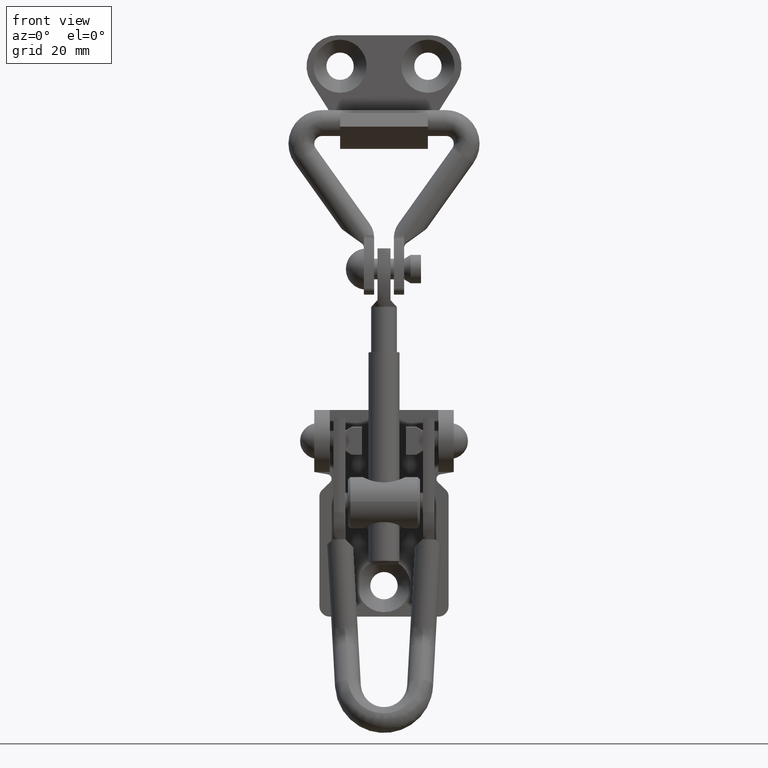
[diagram: clean part render]
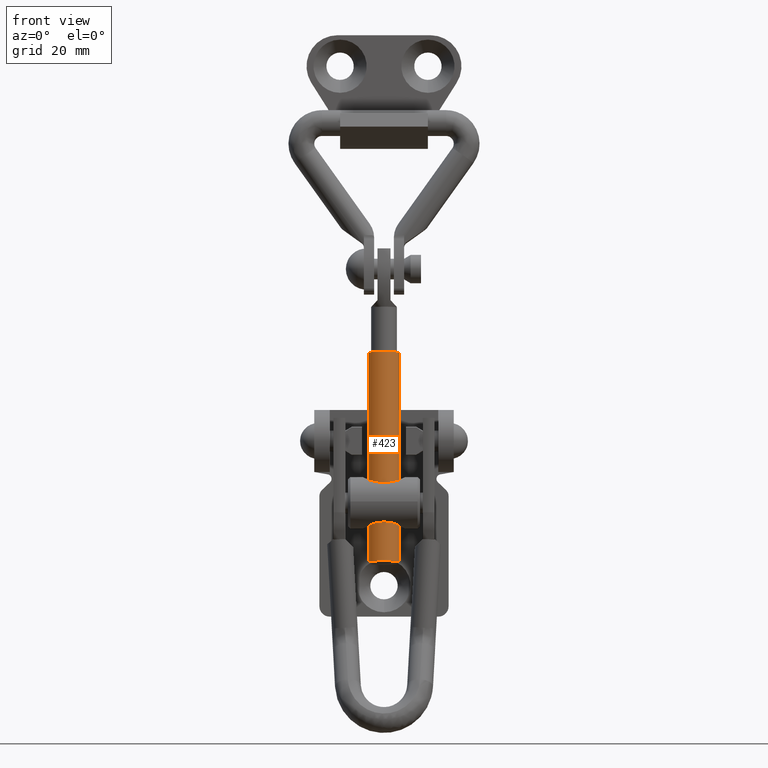
[diagram: same view with one face highlighted and labeled with its STEP entity id]
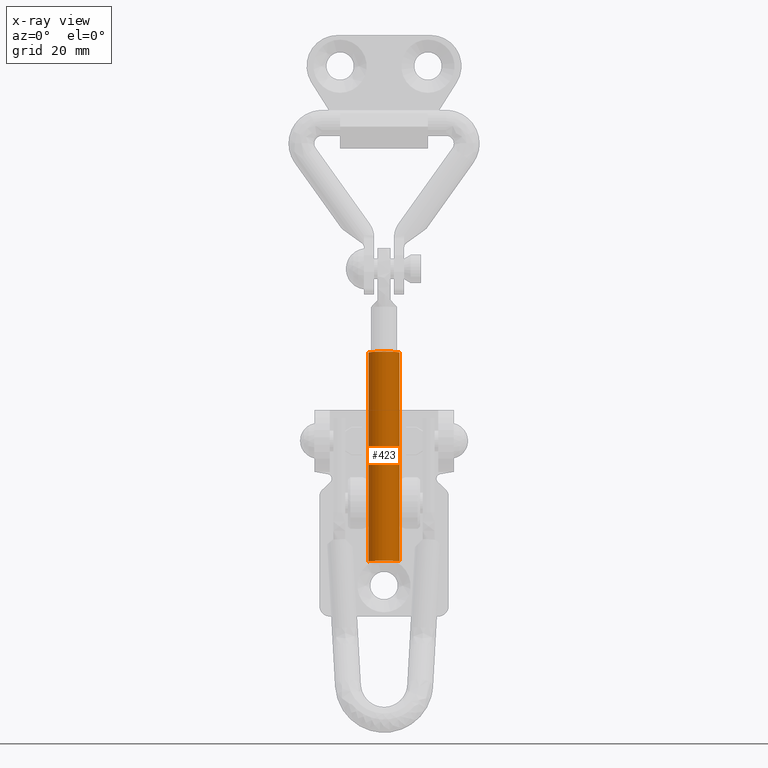
[diagram: x-ray of the same camera — body ghosted, the highlighted face saturated]
A machine part, front view. The second image highlights one B-rep face of the part: STEP entity #423.
The next image is the same camera in x-ray: the body ghosted, the highlighted face saturated — about 0% of this face is hidden behind the body in this view.
In plain terms, the highlighted cylindrical surface (edge-blend (fillet) strip) has radius 3 mm, axis along (0, 0.0488, 0.9988).
Its self-contained STEP definition (entity closure, byte-faithful):
#423=ADVANCED_FACE('',(#2138),#2137,.T.);
#2137=CYLINDRICAL_SURFACE('',#3828,3.00000000041E+00);
#2138=FACE_OUTER_BOUND('',#3829,.T.);
#3825=CARTESIAN_POINT('',(0.00000000000E+00,4.17230694438E-11,0.00000000000E+00));
#3826=DIRECTION('',(-0.00000000000E+00,-0.00000000000E+00,1.00000000000E+00));
#3827=DIRECTION('',(1.00000000000E+00,-0.00000000000E+00,-0.00000000000E+00));
#3828=AXIS2_PLACEMENT_3D('',#3825,#3826,#3827);
#3829=EDGE_LOOP('',(#5328,#5329,#5330,#5331));
#5328=ORIENTED_EDGE('',*,*,#6011,.F.);
#5329=ORIENTED_EDGE('',*,*,#6008,.T.);
#5330=ORIENTED_EDGE('',*,*,#5991,.T.);
#5331=ORIENTED_EDGE('',*,*,#6010,.F.);
#5991=EDGE_CURVE('',#8667,#8668,#8669,.T.);
#6008=EDGE_CURVE('',#8779,#8667,#8780,.T.);
#6010=EDGE_CURVE('',#8786,#8668,#8793,.T.);
#6011=EDGE_CURVE('',#8779,#8786,#8799,.T.);
#8667=VERTEX_POINT('',#11679);
#8668=VERTEX_POINT('',#11680);
#8669=CIRCLE('',#11684,3.00000000033E+00);
#8779=VERTEX_POINT('',#11776);
#8780=(BOUNDED_CURVE() B_SPLINE_CURVE(1,(#11777,#11778),.UNSPECIFIED.,.F.,.F.) B_SPLINE_CURVE_WITH_KNOTS((2,2),(8.33333335810E-02,9.16666666255E-01),.UNSPECIFIED.) CURVE() GEOMETRIC_REPRESENTATION_ITEM() RATIONAL_B_SPLINE_CURVE((1.00000000000E+00,1.00000000000E+00)) REPRESENTATION_ITEM('') );
#8786=VERTEX_POINT('',#11779);
#8793=(BOUNDED_CURVE() B_SPLINE_CURVE(1,(#11784,#11785),.UNSPECIFIED.,.F.,.F.) B_SPLINE_CURVE_WITH_KNOTS((2,2),(8.33333333333E-02,9.16666666667E-01),.UNSPECIFIED.) CURVE() GEOMETRIC_REPRESENTATION_ITEM() RATIONAL_B_SPLINE_CURVE((7.50000000000E-01,7.50000000000E-01)) REPRESENTATION_ITEM('') );
#8799=CIRCLE('',#11789,3.00000000049E+00);
#11679=CARTESIAN_POINT('',(3.00000000033E+00,4.17229214141E-11,-1.61999999999E+01));
#11680=CARTESIAN_POINT('',(-3.00000000033E+00,4.17230694438E-11,-1.61999999999E+01));
#11681=CARTESIAN_POINT('',(0.00000000000E+00,4.17230694438E-11,-1.61999999999E+01));
#11682=DIRECTION('',(-0.00000000000E+00,0.00000000000E+00,-1.00000000000E+00));
#11683=DIRECTION('',(-1.00000000000E+00,-1.22460635382E-16,0.00000000000E+00));
#11684=AXIS2_PLACEMENT_3D('',#11681,#11682,#11683);
#11776=CARTESIAN_POINT('',(3.00000000049E+00,4.17229214141E-11,-5.66999999993E+01));
#11777=CARTESIAN_POINT('',(3.00000000041E+00,4.17230694438E-11,-5.66999999873E+01));
#11778=CARTESIAN_POINT('',(3.00000000041E+00,4.17230694438E-11,-1.62000000199E+01));
#11779=CARTESIAN_POINT('',(-3.00000000049E+00,4.17230694438E-11,-5.66999999993E+01));
#11784=CARTESIAN_POINT('',(-3.00000000041E+00,4.17230694438E-11,-5.66999999993E+01));
#11785=CARTESIAN_POINT('',(-3.00000000041E+00,4.17230694438E-11,-1.61999999999E+01));
#11786=CARTESIAN_POINT('',(0.00000000000E+00,4.17230694438E-11,-5.66999999993E+01));
#11787=DIRECTION('',(-0.00000000000E+00,0.00000000000E+00,-1.00000000000E+00));
#11788=DIRECTION('',(-1.00000000000E+00,-1.22460635382E-16,0.00000000000E+00));
#11789=AXIS2_PLACEMENT_3D('',#11786,#11787,#11788);